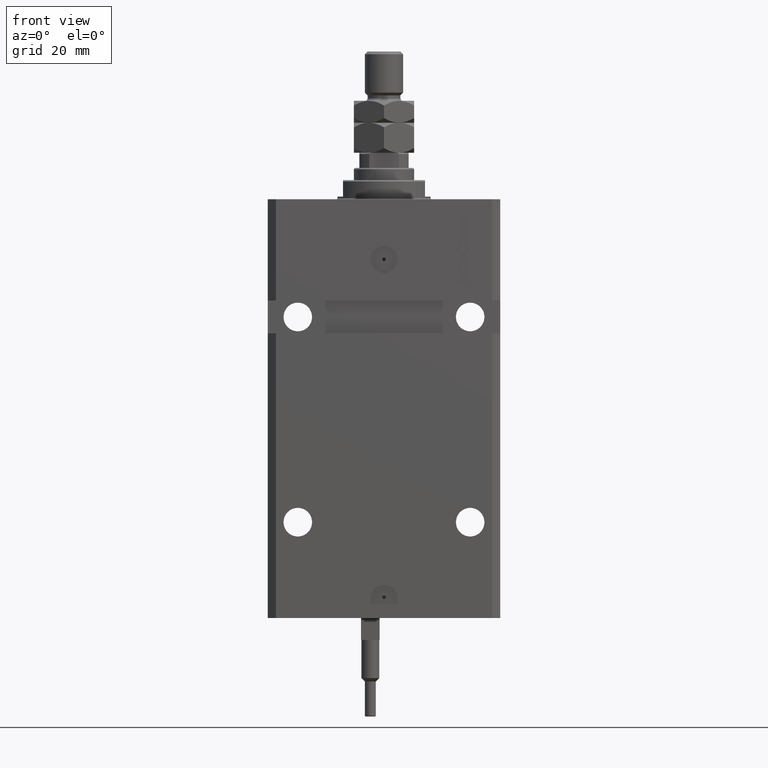
[diagram: clean part render]
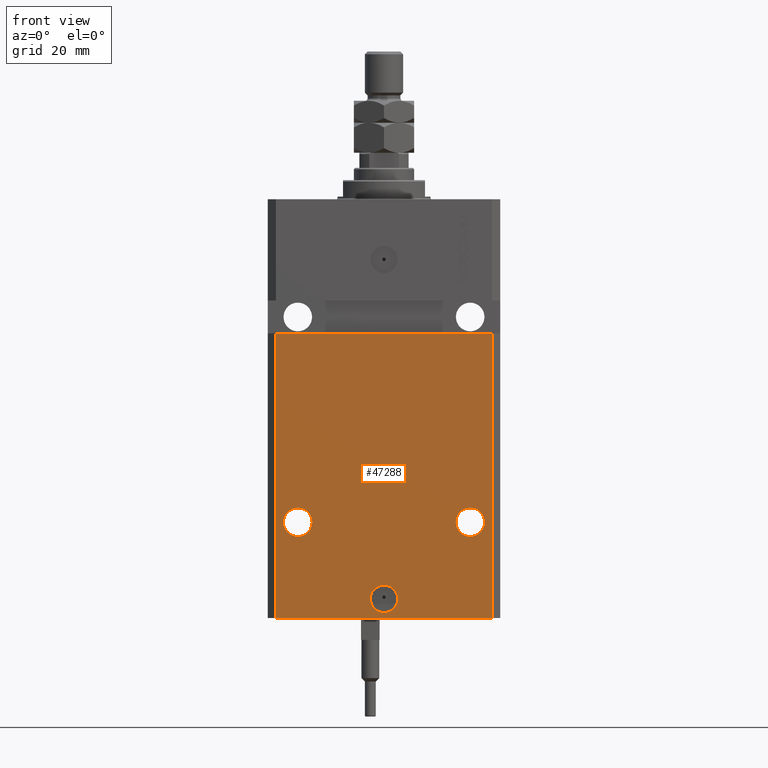
[diagram: same view with one face highlighted and labeled with its STEP entity id]
A machine part, front view. The second image highlights one B-rep face of the part: STEP entity #47288.
In plain terms, the highlighted planar face has unit normal (0, -1, 0).
Its self-contained STEP definition (entity closure, byte-faithful):
#412 = CIRCLE ( 'NONE', #17746, 5.249999999999997335 ) ;
#519 = CIRCLE ( 'NONE', #39224, 5.249999999999997335 ) ;
#1074 = ORIENTED_EDGE ( 'NONE', *, *, #1797, .F. ) ;
#1455 = LINE ( 'NONE', #17203, #38131 ) ;
#1516 = AXIS2_PLACEMENT_3D ( 'NONE', #46546, #10694, #50410 ) ;
#1797 = EDGE_CURVE ( 'NONE', #35413, #34547, #412, .T. ) ;
#1912 = VERTEX_POINT ( 'NONE', #31024 ) ;
#1990 = DIRECTION ( 'NONE',  ( 1.176083712526788232E-16, -1.000000000000000000, 0.000000000000000000 ) ) ;
#2226 = AXIS2_PLACEMENT_3D ( 'NONE', #30301, #10664, #50377 ) ;
#2410 = PLANE ( 'NONE',  #28391 ) ;
#2652 = DIRECTION ( 'NONE',  ( 0.000000000000000000, -0.000000000000000000, -1.000000000000000000 ) ) ;
#4810 = EDGE_LOOP ( 'NONE', ( #1074, #18431 ) ) ;
#4898 = LINE ( 'NONE', #35614, #29797 ) ;
#5052 = CARTESIAN_POINT ( 'NONE',  ( -36.75000000000001421, -31.50000000000000711, -118.0000000000000000 ) ) ;
#5250 = ORIENTED_EDGE ( 'NONE', *, *, #22547, .F. ) ;
#5891 = VERTEX_POINT ( 'NONE', #5052 ) ;
#6003 = DIRECTION ( 'NONE',  ( 1.176083712526788232E-16, -1.000000000000000000, 0.000000000000000000 ) ) ;
#6007 = DIRECTION ( 'NONE',  ( 0.000000000000000000, -1.000000000000000000, 0.000000000000000000 ) ) ;
#6366 = CARTESIAN_POINT ( 'NONE',  ( 0.000000000000000000, -31.50000000000000000, -146.0000000000000000 ) ) ;
#6660 = CARTESIAN_POINT ( 'NONE',  ( 39.50000000000000711, -31.50000000000000000, -153.0000000000000000 ) ) ;
#7725 = EDGE_CURVE ( 'NONE', #12325, #5891, #519, .T. ) ;
#9012 = VERTEX_POINT ( 'NONE', #32272 ) ;
#10129 = FACE_OUTER_BOUND ( 'NONE', #43652, .T. ) ;
#10664 = DIRECTION ( 'NONE',  ( 1.176083712526788232E-16, -1.000000000000000000, 0.000000000000000000 ) ) ;
#10694 = DIRECTION ( 'NONE',  ( 1.176083712526788232E-16, -1.000000000000000000, 0.000000000000000000 ) ) ;
#10890 = FACE_BOUND ( 'NONE', #4810, .T. ) ;
#11750 = VECTOR ( 'NONE', #23295, 1000.000000000000000 ) ;
#12325 = VERTEX_POINT ( 'NONE', #41038 ) ;
#13663 = CARTESIAN_POINT ( 'NONE',  ( 5.000000000000006217, -31.50000000000000000, -146.0000000000000000 ) ) ;
#13873 = DIRECTION ( 'NONE',  ( 1.000000000000000000, 0.000000000000000000, 0.000000000000000000 ) ) ;
#14798 = DIRECTION ( 'NONE',  ( -1.000000000000000000, 0.000000000000000000, 0.000000000000000000 ) ) ;
#15126 = VECTOR ( 'NONE', #22400, 1000.000000000000000 ) ;
#15449 = CIRCLE ( 'NONE', #16261, 5.000000000000006217 ) ;
#16261 = AXIS2_PLACEMENT_3D ( 'NONE', #6366, #1990, #13873 ) ;
#17203 = CARTESIAN_POINT ( 'NONE',  ( -42.50000000000001421, -31.50000000000000711, -48.99999999999999289 ) ) ;
#17746 = AXIS2_PLACEMENT_3D ( 'NONE', #41347, #6003, #22009 ) ;
#18431 = ORIENTED_EDGE ( 'NONE', *, *, #32734, .F. ) ;
#18766 = EDGE_CURVE ( 'NONE', #1912, #50256, #4898, .T. ) ;
#20771 = ORIENTED_EDGE ( 'NONE', *, *, #39750, .F. ) ;
#21253 = EDGE_CURVE ( 'NONE', #50256, #36667, #1455, .T. ) ;
#22009 = DIRECTION ( 'NONE',  ( 1.000000000000000000, 0.000000000000000000, 0.000000000000000000 ) ) ;
#22400 = DIRECTION ( 'NONE',  ( 0.000000000000000000, 0.000000000000000000, 1.000000000000000000 ) ) ;
#22514 = EDGE_LOOP ( 'NONE', ( #23523, #5250 ) ) ;
#22547 = EDGE_CURVE ( 'NONE', #5891, #12325, #29114, .T. ) ;
#23090 = EDGE_LOOP ( 'NONE', ( #49371, #20771 ) ) ;
#23127 = EDGE_CURVE ( 'NONE', #45557, #36667, #42010, .T. ) ;
#23295 = DIRECTION ( 'NONE',  ( 1.000000000000000000, 0.000000000000000000, 0.000000000000000000 ) ) ;
#23298 = DIRECTION ( 'NONE',  ( 1.176083712526788232E-16, -1.000000000000000000, 0.000000000000000000 ) ) ;
#23523 = ORIENTED_EDGE ( 'NONE', *, *, #7725, .F. ) ;
#23749 = CIRCLE ( 'NONE', #1516, 5.000000000000006217 ) ;
#24326 = EDGE_CURVE ( 'NONE', #1912, #45557, #26672, .T. ) ;
#25962 = CARTESIAN_POINT ( 'NONE',  ( -39.50000000000000000, -31.50000000000000711, -48.99999999999999289 ) ) ;
#26596 = CARTESIAN_POINT ( 'NONE',  ( 39.50000000000000711, -31.50000000000000000, -153.0000000000000000 ) ) ;
#26672 = LINE ( 'NONE', #42408, #11750 ) ;
#27827 = CARTESIAN_POINT ( 'NONE',  ( 26.25000000000001776, -31.49999999999999289, -118.0000000000000000 ) ) ;
#27951 = CARTESIAN_POINT ( 'NONE',  ( -31.50000000000001421, -31.50000000000000711, -118.0000000000000000 ) ) ;
#28126 = DIRECTION ( 'NONE',  ( 0.000000000000000000, 0.000000000000000000, 1.000000000000000000 ) ) ;
#28391 = AXIS2_PLACEMENT_3D ( 'NONE', #42115, #6007, #2652 ) ;
#28566 = CIRCLE ( 'NONE', #2226, 5.249999999999997335 ) ;
#28909 = CARTESIAN_POINT ( 'NONE',  ( 36.75000000000001421, -31.49999999999999289, -118.0000000000000000 ) ) ;
#29114 = CIRCLE ( 'NONE', #46411, 5.249999999999997335 ) ;
#29797 = VECTOR ( 'NONE', #28126, 1000.000000000000000 ) ;
#30301 = CARTESIAN_POINT ( 'NONE',  ( 31.50000000000001421, -31.49999999999999289, -118.0000000000000000 ) ) ;
#30843 = ORIENTED_EDGE ( 'NONE', *, *, #24326, .T. ) ;
#31024 = CARTESIAN_POINT ( 'NONE',  ( -39.50000000000000711, -31.50000000000000000, -153.0000000000000000 ) ) ;
#31048 = ORIENTED_EDGE ( 'NONE', *, *, #21253, .F. ) ;
#32272 = CARTESIAN_POINT ( 'NONE',  ( -5.000000000000006217, -31.50000000000000000, -146.0000000000000000 ) ) ;
#32734 = EDGE_CURVE ( 'NONE', #34547, #35413, #28566, .T. ) ;
#32800 = CARTESIAN_POINT ( 'NONE',  ( 39.50000000000000000, -31.49999999999999289, -48.99999999999997868 ) ) ;
#33264 = EDGE_CURVE ( 'NONE', #48768, #9012, #15449, .T. ) ;
#33573 = ORIENTED_EDGE ( 'NONE', *, *, #23127, .T. ) ;
#34547 = VERTEX_POINT ( 'NONE', #27827 ) ;
#34899 = CARTESIAN_POINT ( 'NONE',  ( -31.50000000000001421, -31.50000000000000711, -118.0000000000000000 ) ) ;
#35413 = VERTEX_POINT ( 'NONE', #28909 ) ;
#35614 = CARTESIAN_POINT ( 'NONE',  ( -39.50000000000000711, -31.50000000000000000, -153.0000000000000000 ) ) ;
#36667 = VERTEX_POINT ( 'NONE', #32800 ) ;
#37492 = FACE_BOUND ( 'NONE', #23090, .T. ) ;
#38131 = VECTOR ( 'NONE', #48647, 1000.000000000000000 ) ;
#39224 = AXIS2_PLACEMENT_3D ( 'NONE', #27951, #23298, #42918 ) ;
#39750 = EDGE_CURVE ( 'NONE', #9012, #48768, #23749, .T. ) ;
#41038 = CARTESIAN_POINT ( 'NONE',  ( -26.25000000000001776, -31.50000000000000711, -118.0000000000000000 ) ) ;
#41347 = CARTESIAN_POINT ( 'NONE',  ( 31.50000000000001421, -31.49999999999999289, -118.0000000000000000 ) ) ;
#42010 = LINE ( 'NONE', #6660, #15126 ) ;
#42115 = CARTESIAN_POINT ( 'NONE',  ( -39.50000000000000711, -31.50000000000000000, -153.0000000000000000 ) ) ;
#42408 = CARTESIAN_POINT ( 'NONE',  ( -39.50000000000000711, -31.50000000000000000, -153.0000000000000000 ) ) ;
#42918 = DIRECTION ( 'NONE',  ( -1.000000000000000000, 0.000000000000000000, 0.000000000000000000 ) ) ;
#43652 = EDGE_LOOP ( 'NONE', ( #31048, #46190, #30843, #33573 ) ) ;
#45482 = FACE_BOUND ( 'NONE', #22514, .T. ) ;
#45557 = VERTEX_POINT ( 'NONE', #26596 ) ;
#46190 = ORIENTED_EDGE ( 'NONE', *, *, #18766, .F. ) ;
#46411 = AXIS2_PLACEMENT_3D ( 'NONE', #34899, #50126, #14798 ) ;
#46546 = CARTESIAN_POINT ( 'NONE',  ( 0.000000000000000000, -31.50000000000000000, -146.0000000000000000 ) ) ;
#47288 = ADVANCED_FACE ( 'NONE', ( #37492, #10890, #45482, #10129 ), #2410, .T. ) ;
#48647 = DIRECTION ( 'NONE',  ( 1.000000000000000000, 1.632680918566406054E-16, 1.632680918566406054E-16 ) ) ;
#48768 = VERTEX_POINT ( 'NONE', #13663 ) ;
#49371 = ORIENTED_EDGE ( 'NONE', *, *, #33264, .F. ) ;
#50126 = DIRECTION ( 'NONE',  ( 1.176083712526788232E-16, -1.000000000000000000, 0.000000000000000000 ) ) ;
#50256 = VERTEX_POINT ( 'NONE', #25962 ) ;
#50377 = DIRECTION ( 'NONE',  ( 1.000000000000000000, 0.000000000000000000, 0.000000000000000000 ) ) ;
#50410 = DIRECTION ( 'NONE',  ( 1.000000000000000000, 0.000000000000000000, 0.000000000000000000 ) ) ;